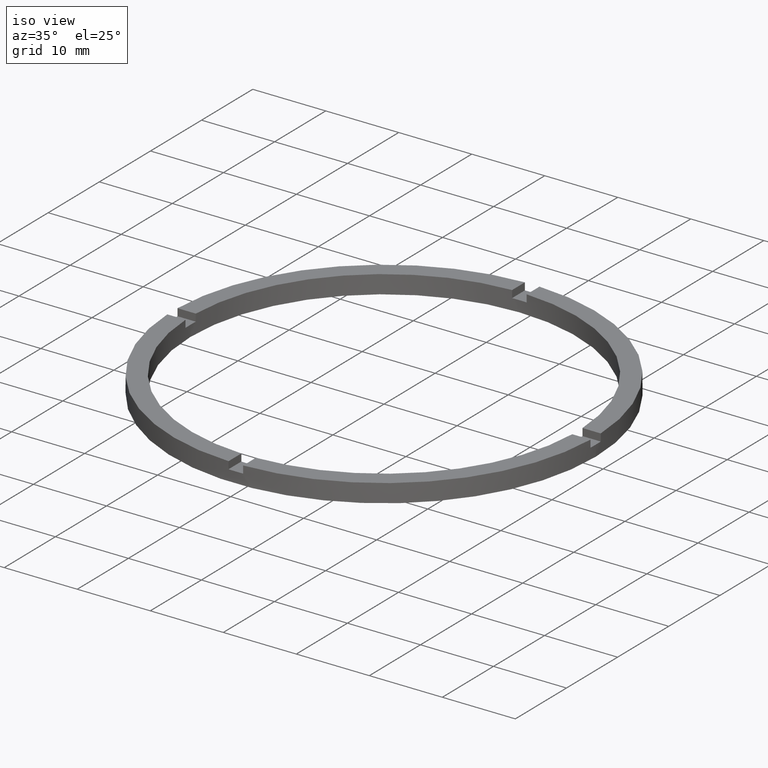
[diagram: clean part render]
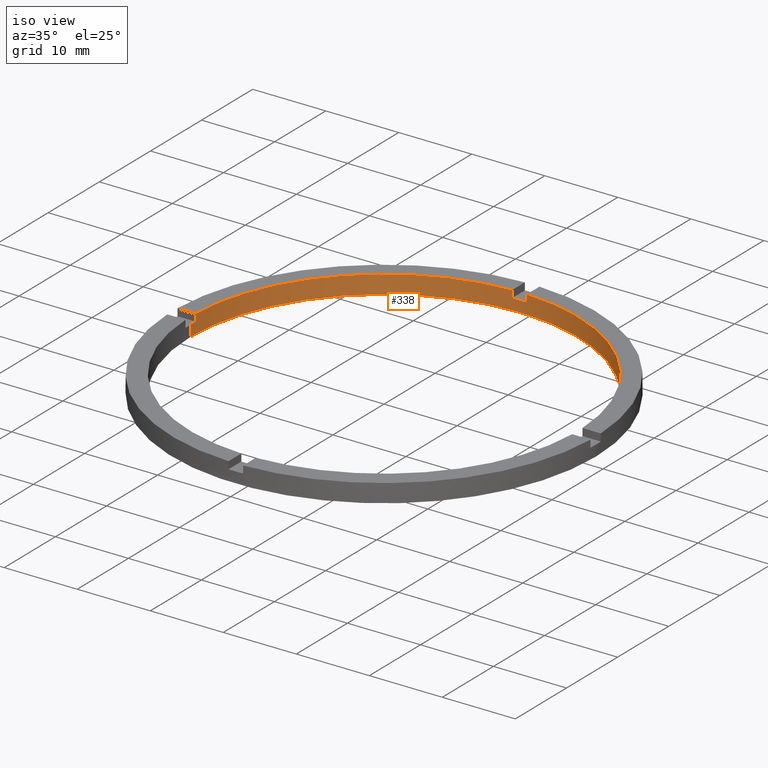
[diagram: same view with one face highlighted and labeled with its STEP entity id]
A machine part, iso view. The second image highlights one B-rep face of the part: STEP entity #338.
In plain terms, the highlighted cylindrical surface (partial cylindrical patch) has radius 26.5 mm, axis along (-0, -0, -1).
Its self-contained STEP definition (entity closure, byte-faithful):
#12 = CARTESIAN_POINT ( 'NONE',  ( 0.9999999999999733546, 26.48112535373072518, 2.500000000000000000 ) ) ;
#21 = VERTEX_POINT ( 'NONE', #319 ) ;
#26 = ORIENTED_EDGE ( 'NONE', *, *, #152, .T. ) ;
#27 = CARTESIAN_POINT ( 'NONE',  ( -1.000000000000026645, 26.48112535373072163, 1.500000000000000000 ) ) ;
#34 = CARTESIAN_POINT ( 'NONE',  ( 0.000000000000000000, 0.000000000000000000, 1.500000000000000000 ) ) ;
#36 = VERTEX_POINT ( 'NONE', #611 ) ;
#62 = DIRECTION ( 'NONE',  ( -0.000000000000000000, -0.000000000000000000, -1.000000000000000000 ) ) ;
#73 = DIRECTION ( 'NONE',  ( -0.000000000000000000, -0.000000000000000000, -1.000000000000000000 ) ) ;
#77 = DIRECTION ( 'NONE',  ( -0.000000000000000000, -0.000000000000000000, -1.000000000000000000 ) ) ;
#78 = FACE_OUTER_BOUND ( 'NONE', #175, .T. ) ;
#79 = CARTESIAN_POINT ( 'NONE',  ( 0.000000000000000000, 0.000000000000000000, 0.000000000000000000 ) ) ;
#85 = CIRCLE ( 'NONE', #361, 26.50000000000000355 ) ;
#89 = LINE ( 'NONE', #704, #451 ) ;
#119 = DIRECTION ( 'NONE',  ( 0.000000000000000000, 0.000000000000000000, 1.000000000000000000 ) ) ;
#134 = EDGE_CURVE ( 'NONE', #135, #185, #329, .T. ) ;
#135 = VERTEX_POINT ( 'NONE', #711 ) ;
#145 = DIRECTION ( 'NONE',  ( 1.000000000000000000, 0.000000000000000000, 0.000000000000000000 ) ) ;
#147 = DIRECTION ( 'NONE',  ( 0.000000000000000000, 0.000000000000000000, 1.000000000000000000 ) ) ;
#151 = CARTESIAN_POINT ( 'NONE',  ( -26.48112535373072518, 0.9999999999999731326, 1.500000000000000000 ) ) ;
#152 = EDGE_CURVE ( 'NONE', #225, #21, #85, .T. ) ;
#175 = EDGE_LOOP ( 'NONE', ( #206, #713, #561, #26, #752, #616, #270, #569, #276, #642, #499, #286 ) ) ;
#176 = AXIS2_PLACEMENT_3D ( 'NONE', #669, #284, #432 ) ;
#185 = VERTEX_POINT ( 'NONE', #27 ) ;
#196 = VECTOR ( 'NONE', #73, 1000.000000000000000 ) ;
#203 = CARTESIAN_POINT ( 'NONE',  ( 26.48112535373072873, 0.9999999999998430145, 2.500000000000000000 ) ) ;
#206 = ORIENTED_EDGE ( 'NONE', *, *, #765, .F. ) ;
#225 = VERTEX_POINT ( 'NONE', #498 ) ;
#232 = CARTESIAN_POINT ( 'NONE',  ( -26.50000000000000355, 0.000000000000000000, 1.500000000000000000 ) ) ;
#233 = EDGE_CURVE ( 'NONE', #312, #535, #613, .T. ) ;
#235 = CARTESIAN_POINT ( 'NONE',  ( 26.50000000000000355, 3.245314017740486554E-15, 2.500000000000000000 ) ) ;
#247 = AXIS2_PLACEMENT_3D ( 'NONE', #34, #751, #145 ) ;
#253 = EDGE_CURVE ( 'NONE', #135, #674, #358, .T. ) ;
#270 = ORIENTED_EDGE ( 'NONE', *, *, #134, .F. ) ;
#276 = ORIENTED_EDGE ( 'NONE', *, *, #529, .F. ) ;
#283 = VERTEX_POINT ( 'NONE', #753 ) ;
#284 = DIRECTION ( 'NONE',  ( 0.000000000000000000, 0.000000000000000000, 1.000000000000000000 ) ) ;
#286 = ORIENTED_EDGE ( 'NONE', *, *, #233, .F. ) ;
#312 = VERTEX_POINT ( 'NONE', #520 ) ;
#319 = CARTESIAN_POINT ( 'NONE',  ( 0.9999999999999733546, 26.48112535373072518, 2.500000000000000000 ) ) ;
#329 = LINE ( 'NONE', #767, #348 ) ;
#338 = ADVANCED_FACE ( 'NONE', ( #78 ), #631, .F. ) ;
#348 = VECTOR ( 'NONE', #707, 1000.000000000000000 ) ;
#357 = DIRECTION ( 'NONE',  ( 0.000000000000000000, 0.000000000000000000, 1.000000000000000000 ) ) ;
#358 = CIRCLE ( 'NONE', #176, 26.50000000000000355 ) ;
#361 = AXIS2_PLACEMENT_3D ( 'NONE', #521, #357, #589 ) ;
#367 = VECTOR ( 'NONE', #690, 1000.000000000000000 ) ;
#368 = CIRCLE ( 'NONE', #482, 26.50000000000000355 ) ;
#372 = LINE ( 'NONE', #203, #367 ) ;
#377 = VECTOR ( 'NONE', #147, 1000.000000000000000 ) ;
#381 = CARTESIAN_POINT ( 'NONE',  ( 0.9999999999999733546, 26.48112535373072518, 1.500000000000000000 ) ) ;
#413 = CARTESIAN_POINT ( 'NONE',  ( -26.50000000000000355, 0.000000000000000000, 0.000000000000000000 ) ) ;
#422 = AXIS2_PLACEMENT_3D ( 'NONE', #653, #62, #593 ) ;
#426 = EDGE_CURVE ( 'NONE', #774, #21, #630, .T. ) ;
#432 = DIRECTION ( 'NONE',  ( 1.000000000000000000, 0.000000000000000000, 0.000000000000000000 ) ) ;
#438 = LINE ( 'NONE', #235, #196 ) ;
#451 = VECTOR ( 'NONE', #646, 1000.000000000000000 ) ;
#453 = CIRCLE ( 'NONE', #734, 26.50000000000000355 ) ;
#474 = LINE ( 'NONE', #596, #735 ) ;
#482 = AXIS2_PLACEMENT_3D ( 'NONE', #510, #575, #763 ) ;
#489 = EDGE_CURVE ( 'NONE', #512, #659, #368, .T. ) ;
#498 = CARTESIAN_POINT ( 'NONE',  ( 26.48112535373072873, 0.9999999999998430145, 2.500000000000000000 ) ) ;
#499 = ORIENTED_EDGE ( 'NONE', *, *, #705, .T. ) ;
#501 = AXIS2_PLACEMENT_3D ( 'NONE', #79, #607, #533 ) ;
#510 = CARTESIAN_POINT ( 'NONE',  ( 0.000000000000000000, 0.000000000000000000, 1.500000000000000000 ) ) ;
#512 = VERTEX_POINT ( 'NONE', #151 ) ;
#518 = EDGE_CURVE ( 'NONE', #225, #283, #372, .T. ) ;
#520 = CARTESIAN_POINT ( 'NONE',  ( 26.50000000000000355, 3.245314017740486554E-15, 0.000000000000000000 ) ) ;
#521 = CARTESIAN_POINT ( 'NONE',  ( 0.000000000000000000, 0.000000000000000000, 2.500000000000000000 ) ) ;
#529 = EDGE_CURVE ( 'NONE', #512, #674, #89, .T. ) ;
#533 = DIRECTION ( 'NONE',  ( 1.000000000000000000, 0.000000000000000000, 0.000000000000000000 ) ) ;
#535 = VERTEX_POINT ( 'NONE', #413 ) ;
#561 = ORIENTED_EDGE ( 'NONE', *, *, #518, .F. ) ;
#569 = ORIENTED_EDGE ( 'NONE', *, *, #253, .T. ) ;
#575 = DIRECTION ( 'NONE',  ( 0.000000000000000000, 0.000000000000000000, 1.000000000000000000 ) ) ;
#580 = EDGE_CURVE ( 'NONE', #774, #185, #714, .T. ) ;
#589 = DIRECTION ( 'NONE',  ( 1.000000000000000000, 0.000000000000000000, 0.000000000000000000 ) ) ;
#593 = DIRECTION ( 'NONE',  ( -1.000000000000000000, 0.000000000000000000, 0.000000000000000000 ) ) ;
#595 = CARTESIAN_POINT ( 'NONE',  ( 0.000000000000000000, 0.000000000000000000, 1.500000000000000000 ) ) ;
#596 = CARTESIAN_POINT ( 'NONE',  ( -26.50000000000000355, 0.000000000000000000, 2.500000000000000000 ) ) ;
#607 = DIRECTION ( 'NONE',  ( 0.000000000000000000, 0.000000000000000000, 1.000000000000000000 ) ) ;
#611 = CARTESIAN_POINT ( 'NONE',  ( 26.50000000000000355, 3.245314017740486554E-15, 1.500000000000000000 ) ) ;
#613 = CIRCLE ( 'NONE', #501, 26.50000000000000355 ) ;
#616 = ORIENTED_EDGE ( 'NONE', *, *, #580, .T. ) ;
#630 = LINE ( 'NONE', #12, #377 ) ;
#631 = CYLINDRICAL_SURFACE ( 'NONE', #422, 26.50000000000000355 ) ;
#642 = ORIENTED_EDGE ( 'NONE', *, *, #489, .T. ) ;
#643 = EDGE_CURVE ( 'NONE', #36, #283, #453, .T. ) ;
#646 = DIRECTION ( 'NONE',  ( 0.000000000000000000, 0.000000000000000000, 1.000000000000000000 ) ) ;
#653 = CARTESIAN_POINT ( 'NONE',  ( 0.000000000000000000, 0.000000000000000000, 2.500000000000000000 ) ) ;
#659 = VERTEX_POINT ( 'NONE', #232 ) ;
#669 = CARTESIAN_POINT ( 'NONE',  ( 0.000000000000000000, 0.000000000000000000, 2.500000000000000000 ) ) ;
#674 = VERTEX_POINT ( 'NONE', #736 ) ;
#690 = DIRECTION ( 'NONE',  ( -0.000000000000000000, -0.000000000000000000, -1.000000000000000000 ) ) ;
#704 = CARTESIAN_POINT ( 'NONE',  ( -26.48112535373072518, 0.9999999999999731326, 2.500000000000000000 ) ) ;
#705 = EDGE_CURVE ( 'NONE', #659, #535, #474, .T. ) ;
#707 = DIRECTION ( 'NONE',  ( -0.000000000000000000, -0.000000000000000000, -1.000000000000000000 ) ) ;
#711 = CARTESIAN_POINT ( 'NONE',  ( -1.000000000000026645, 26.48112535373072163, 2.500000000000000000 ) ) ;
#713 = ORIENTED_EDGE ( 'NONE', *, *, #643, .T. ) ;
#714 = CIRCLE ( 'NONE', #247, 26.50000000000000355 ) ;
#734 = AXIS2_PLACEMENT_3D ( 'NONE', #595, #119, #771 ) ;
#735 = VECTOR ( 'NONE', #77, 1000.000000000000000 ) ;
#736 = CARTESIAN_POINT ( 'NONE',  ( -26.48112535373072518, 0.9999999999999731326, 2.500000000000000000 ) ) ;
#751 = DIRECTION ( 'NONE',  ( 0.000000000000000000, -0.000000000000000000, 1.000000000000000000 ) ) ;
#752 = ORIENTED_EDGE ( 'NONE', *, *, #426, .F. ) ;
#753 = CARTESIAN_POINT ( 'NONE',  ( 26.48112535373072873, 0.9999999999998430145, 1.500000000000000000 ) ) ;
#763 = DIRECTION ( 'NONE',  ( 1.000000000000000000, 0.000000000000000000, 0.000000000000000000 ) ) ;
#765 = EDGE_CURVE ( 'NONE', #36, #312, #438, .T. ) ;
#767 = CARTESIAN_POINT ( 'NONE',  ( -1.000000000000026645, 26.48112535373072163, 2.500000000000000000 ) ) ;
#771 = DIRECTION ( 'NONE',  ( 1.000000000000000000, 0.000000000000000000, 0.000000000000000000 ) ) ;
#774 = VERTEX_POINT ( 'NONE', #381 ) ;